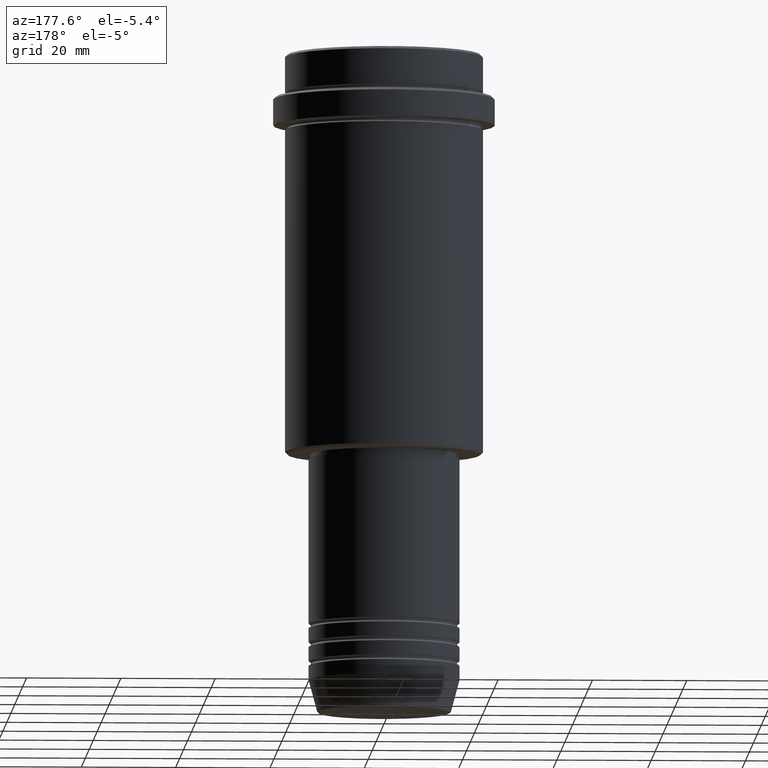
[diagram: clean part render]
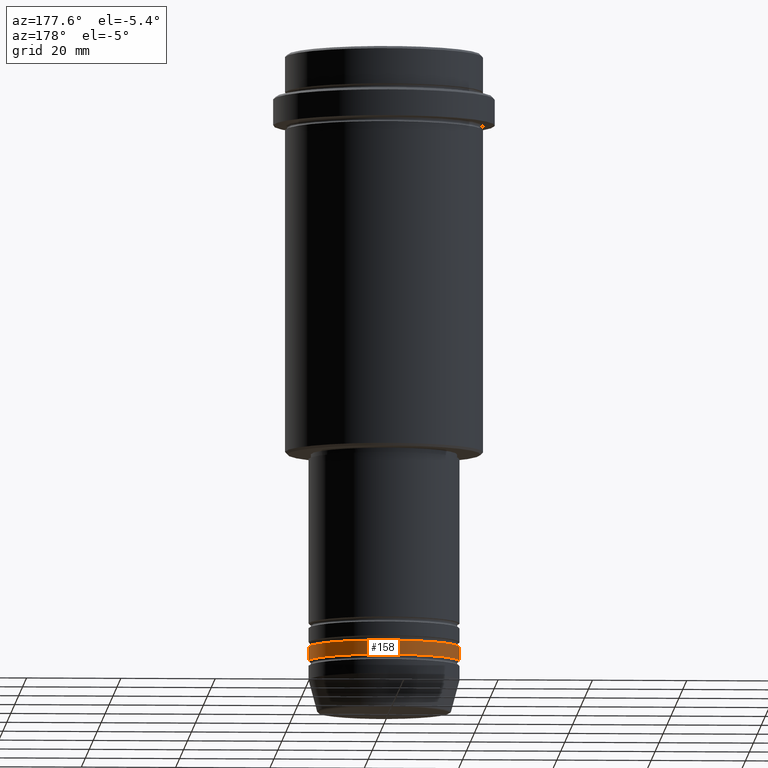
[diagram: same view with one face highlighted and labeled with its STEP entity id]
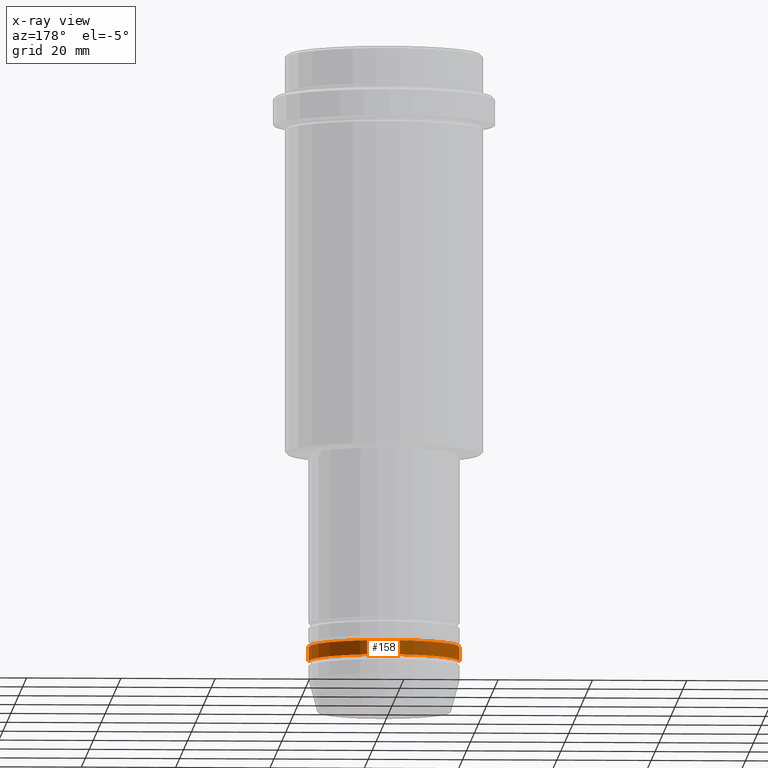
[diagram: x-ray of the same camera — body ghosted, the highlighted face saturated]
A machine part, auxiliary view. The second image highlights one B-rep face of the part: STEP entity #158.
The next image is the same camera in x-ray: the body ghosted, the highlighted face saturated — about 0% of this face is hidden behind the body in this view.
In plain terms, the highlighted cylindrical surface (partial cylindrical patch) has radius 16 mm, axis along (-0, -0, 1).
Its self-contained STEP definition (entity closure, byte-faithful):
#30 = DIRECTION ( 'NONE',  ( 1.000000000000000000, 0.000000000000000000, 0.000000000000000000 ) ) ;
#76 = ORIENTED_EDGE ( 'NONE', *, *, #1063, .F. ) ;
#158 = ADVANCED_FACE ( 'NONE', ( #523 ), #528, .T. ) ;
#162 = VECTOR ( 'NONE', #980, 1000.000000000000000 ) ;
#188 = DIRECTION ( 'NONE',  ( -0.000000000000000000, -0.000000000000000000, 1.000000000000000000 ) ) ;
#206 = CARTESIAN_POINT ( 'NONE',  ( -16.00000000000000000, 1.959434878635765131E-15, -128.9999999999998863 ) ) ;
#238 = ORIENTED_EDGE ( 'NONE', *, *, #1381, .T. ) ;
#257 = CARTESIAN_POINT ( 'NONE',  ( 16.00000000000000000, 0.000000000000000000, -128.9999999999998863 ) ) ;
#259 = VERTEX_POINT ( 'NONE', #206 ) ;
#339 = EDGE_LOOP ( 'NONE', ( #238, #462, #76, #599 ) ) ;
#375 = CARTESIAN_POINT ( 'NONE',  ( -16.00000000000000000, 1.959434878635765131E-15, -125.9999999999998863 ) ) ;
#378 = DIRECTION ( 'NONE',  ( -0.000000000000000000, -0.000000000000000000, 1.000000000000000000 ) ) ;
#435 = VERTEX_POINT ( 'NONE', #375 ) ;
#462 = ORIENTED_EDGE ( 'NONE', *, *, #1155, .T. ) ;
#464 = CARTESIAN_POINT ( 'NONE',  ( 0.000000000000000000, 0.000000000000000000, -128.9999999999998863 ) ) ;
#501 = AXIS2_PLACEMENT_3D ( 'NONE', #749, #1311, #1182 ) ;
#523 = FACE_OUTER_BOUND ( 'NONE', #339, .T. ) ;
#528 = CYLINDRICAL_SURFACE ( 'NONE', #501, 16.00000000000000000 ) ;
#530 = DIRECTION ( 'NONE',  ( 1.000000000000000000, 0.000000000000000000, 0.000000000000000000 ) ) ;
#546 = CARTESIAN_POINT ( 'NONE',  ( -16.00000000000000000, 1.959434878635765131E-15, 0.000000000000000000 ) ) ;
#588 = AXIS2_PLACEMENT_3D ( 'NONE', #974, #671, #530 ) ;
#599 = ORIENTED_EDGE ( 'NONE', *, *, #917, .F. ) ;
#649 = LINE ( 'NONE', #546, #162 ) ;
#671 = DIRECTION ( 'NONE',  ( -0.000000000000000000, -0.000000000000000000, 1.000000000000000000 ) ) ;
#677 = CIRCLE ( 'NONE', #972, 16.00000000000000000 ) ;
#727 = LINE ( 'NONE', #1160, #817 ) ;
#749 = CARTESIAN_POINT ( 'NONE',  ( 0.000000000000000000, 0.000000000000000000, 0.000000000000000000 ) ) ;
#817 = VECTOR ( 'NONE', #188, 1000.000000000000000 ) ;
#917 = EDGE_CURVE ( 'NONE', #1314, #1245, #727, .T. ) ;
#972 = AXIS2_PLACEMENT_3D ( 'NONE', #464, #378, #30 ) ;
#974 = CARTESIAN_POINT ( 'NONE',  ( 0.000000000000000000, 0.000000000000000000, -125.9999999999998863 ) ) ;
#980 = DIRECTION ( 'NONE',  ( -0.000000000000000000, -0.000000000000000000, 1.000000000000000000 ) ) ;
#1063 = EDGE_CURVE ( 'NONE', #1245, #435, #1319, .T. ) ;
#1155 = EDGE_CURVE ( 'NONE', #259, #435, #649, .T. ) ;
#1160 = CARTESIAN_POINT ( 'NONE',  ( 16.00000000000000000, 0.000000000000000000, 0.000000000000000000 ) ) ;
#1182 = DIRECTION ( 'NONE',  ( 1.000000000000000000, 0.000000000000000000, 0.000000000000000000 ) ) ;
#1225 = CARTESIAN_POINT ( 'NONE',  ( 16.00000000000000000, 0.000000000000000000, -125.9999999999998863 ) ) ;
#1245 = VERTEX_POINT ( 'NONE', #1225 ) ;
#1311 = DIRECTION ( 'NONE',  ( -0.000000000000000000, -0.000000000000000000, 1.000000000000000000 ) ) ;
#1314 = VERTEX_POINT ( 'NONE', #257 ) ;
#1319 = CIRCLE ( 'NONE', #588, 16.00000000000000000 ) ;
#1381 = EDGE_CURVE ( 'NONE', #1314, #259, #677, .T. ) ;